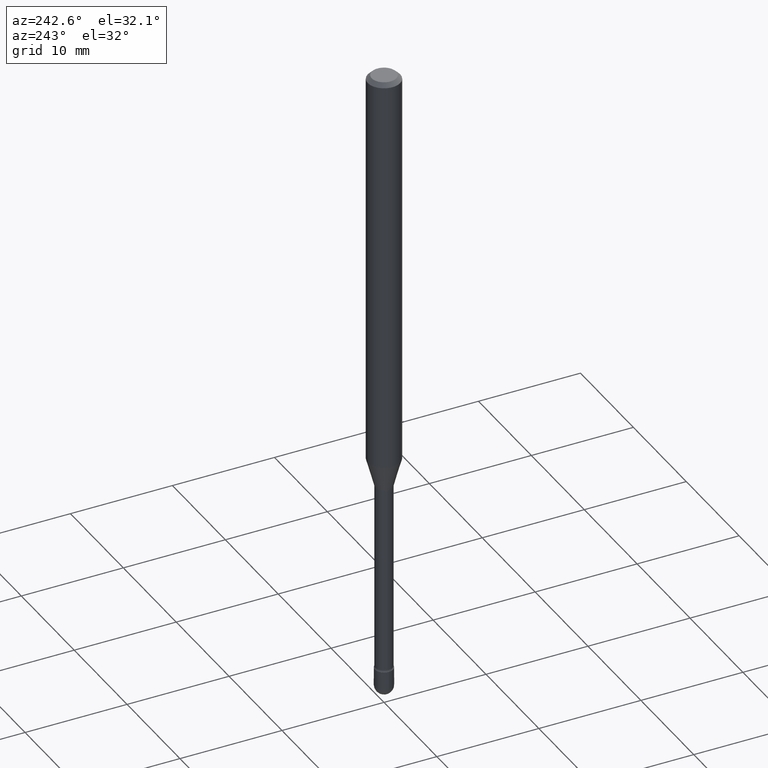
[diagram: clean part render]
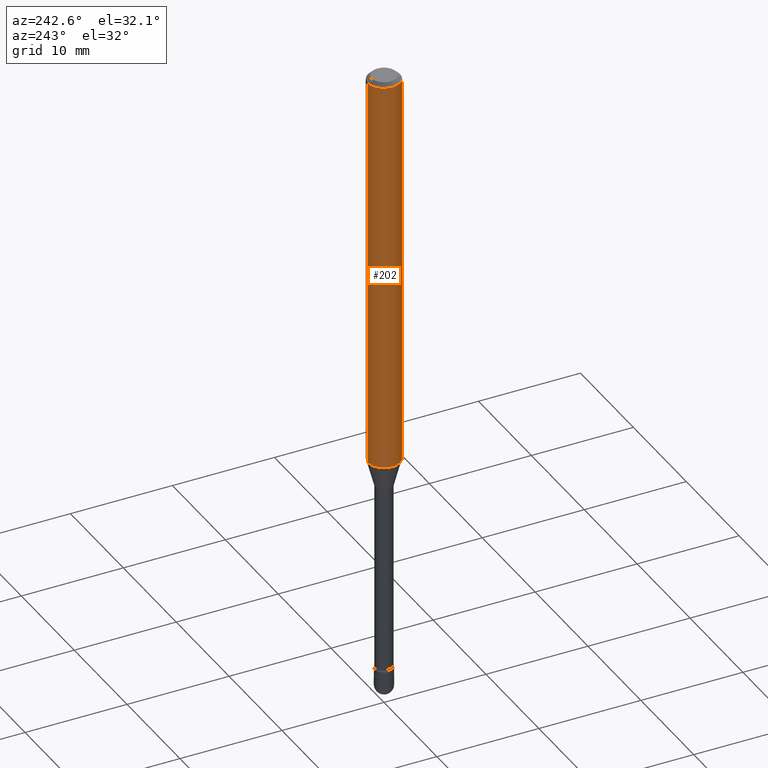
[diagram: same view with one face highlighted and labeled with its STEP entity id]
A machine part, auxiliary view. The second image highlights one B-rep face of the part: STEP entity #202.
In plain terms, the highlighted cylindrical surface (edge-blend (fillet) strip) has radius 1.5875 mm, axis along (-0, 0, 1).
Its self-contained STEP definition (entity closure, byte-faithful):
#26 = DIRECTION ( 'NONE',  ( -2.445497334046926588E-29, 3.491440485321357579E-15, 1.000000000000000000 ) ) ;
#105 = CARTESIAN_POINT ( 'NONE',  ( -4.364351673553916201E-16, -0.06250000000000000000, 6.962884292238308873E-16 ) ) ;
#130 = CYLINDRICAL_SURFACE ( 'NONE', #516, 0.06250000000000000000 ) ;
#131 = AXIS2_PLACEMENT_3D ( 'NONE', #385, #511, #365 ) ;
#139 = DIRECTION ( 'NONE',  ( -2.445497334046926869E-29, 3.491440485321357184E-15, 1.000000000000000000 ) ) ;
#143 = VERTEX_POINT ( 'NONE', #381 ) ;
#174 = VERTEX_POINT ( 'NONE', #296 ) ;
#177 = ORIENTED_EDGE ( 'NONE', *, *, #414, .F. ) ;
#185 = EDGE_CURVE ( 'NONE', #271, #255, #439, .T. ) ;
#186 = LINE ( 'NONE', #539, #295 ) ;
#188 = AXIS2_PLACEMENT_3D ( 'NONE', #429, #26, #207 ) ;
#196 = EDGE_CURVE ( 'NONE', #143, #174, #237, .T. ) ;
#202 = ADVANCED_FACE ( 'NONE', ( #559 ), #130, .T. ) ;
#207 = DIRECTION ( 'NONE',  ( -6.982962677686265922E-15, -1.000000000000000000, 4.370956789862821150E-15 ) ) ;
#220 = CARTESIAN_POINT ( 'NONE',  ( 4.440892098501002843E-16, 0.06249999999999455991, -1.549531296095961963 ) ) ;
#237 = CIRCLE ( 'NONE', #131, 0.06250000000000000000 ) ;
#238 = VECTOR ( 'NONE', #139, 39.37007874015748143 ) ;
#239 = DIRECTION ( 'NONE',  ( -2.445497334046926869E-29, 3.491440485321357184E-15, 1.000000000000000000 ) ) ;
#255 = VERTEX_POINT ( 'NONE', #403 ) ;
#271 = VERTEX_POINT ( 'NONE', #220 ) ;
#295 = VECTOR ( 'NONE', #239, 39.37007874015748143 ) ;
#296 = CARTESIAN_POINT ( 'NONE',  ( -4.364351673553912750E-16, -0.06250000000000005551, -0.01499999999999986587 ) ) ;
#334 = ORIENTED_EDGE ( 'NONE', *, *, #196, .F. ) ;
#365 = DIRECTION ( 'NONE',  ( -6.982962677686265922E-15, -1.000000000000000000, 3.483106191921935554E-15 ) ) ;
#381 = CARTESIAN_POINT ( 'NONE',  ( 4.440892098501006787E-16, 0.06249999999999995143, -0.01500000000000030129 ) ) ;
#385 = CARTESIAN_POINT ( 'NONE',  ( 3.668246001070409676E-31, -5.237160727982065186E-17, -0.01500000000000008271 ) ) ;
#403 = CARTESIAN_POINT ( 'NONE',  ( -4.364351673553540013E-16, -0.06250000000000544009, -1.549531296095961297 ) ) ;
#414 = EDGE_CURVE ( 'NONE', #271, #143, #186, .T. ) ;
#422 = LINE ( 'NONE', #105, #238 ) ;
#424 = EDGE_CURVE ( 'NONE', #255, #174, #422, .T. ) ;
#429 = CARTESIAN_POINT ( 'NONE',  ( 3.789374653624952942E-29, -5.410096300461916682E-15, -1.549531296095961519 ) ) ;
#436 = DIRECTION ( 'NONE',  ( -6.982962677686265922E-15, -1.000000000000000000, 3.491440485321357973E-15 ) ) ;
#439 = CIRCLE ( 'NONE', #188, 0.06250000000000000000 ) ;
#442 = DIRECTION ( 'NONE',  ( -2.445497334046926588E-29, 3.491440485321357579E-15, 1.000000000000000000 ) ) ;
#445 = EDGE_LOOP ( 'NONE', ( #177, #478, #486, #334 ) ) ;
#478 = ORIENTED_EDGE ( 'NONE', *, *, #185, .T. ) ;
#486 = ORIENTED_EDGE ( 'NONE', *, *, #424, .T. ) ;
#511 = DIRECTION ( 'NONE',  ( -2.445497334046926588E-29, 3.491440485321357579E-15, 1.000000000000000000 ) ) ;
#516 = AXIS2_PLACEMENT_3D ( 'NONE', #565, #442, #436 ) ;
#539 = CARTESIAN_POINT ( 'NONE',  ( 4.440892098500625669E-16, 0.06250000000000000000, 2.598583685586612392E-16 ) ) ;
#559 = FACE_OUTER_BOUND ( 'NONE', #445, .T. ) ;
#565 = CARTESIAN_POINT ( 'NONE',  ( -1.169113584055446105E-44, 1.669184350826100908E-30, 4.780733988912460139E-16 ) ) ;